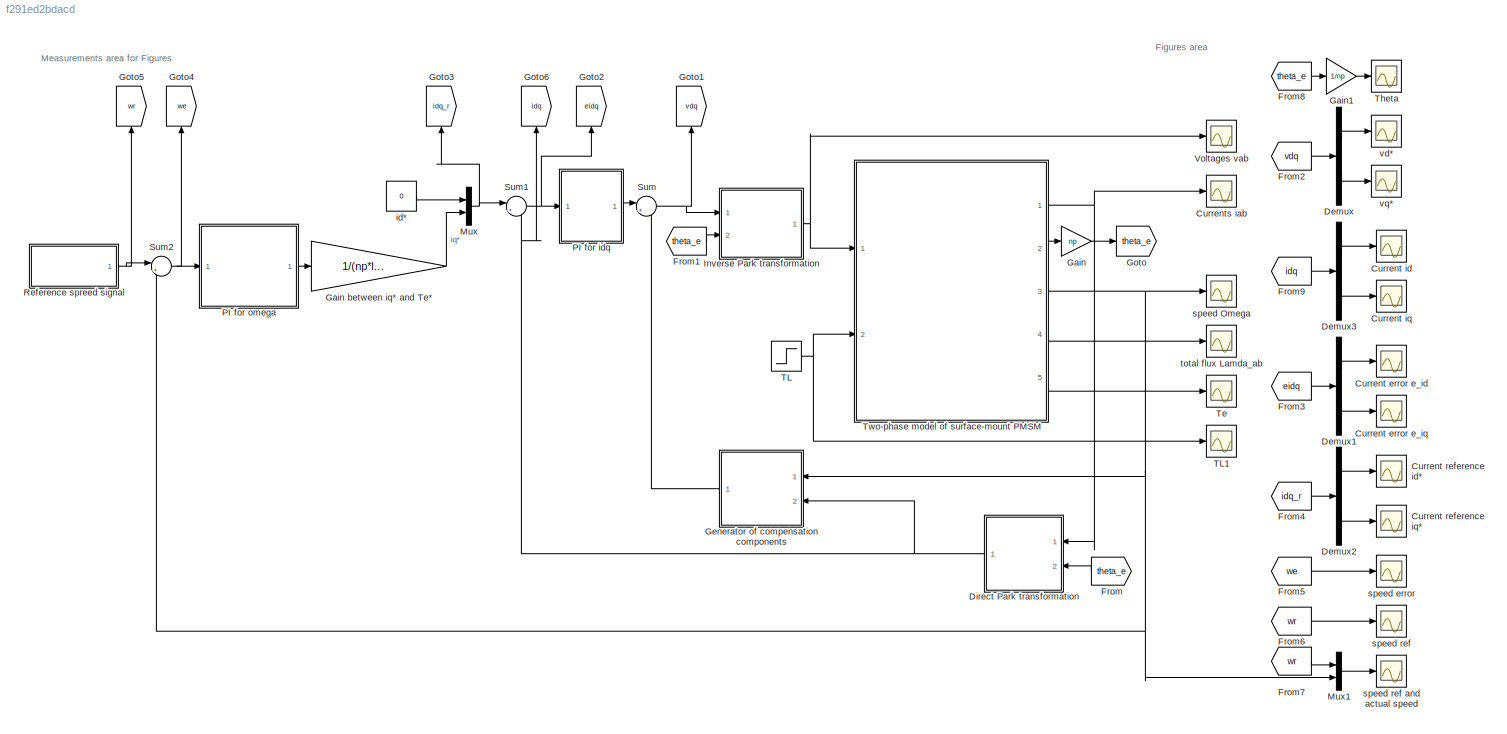
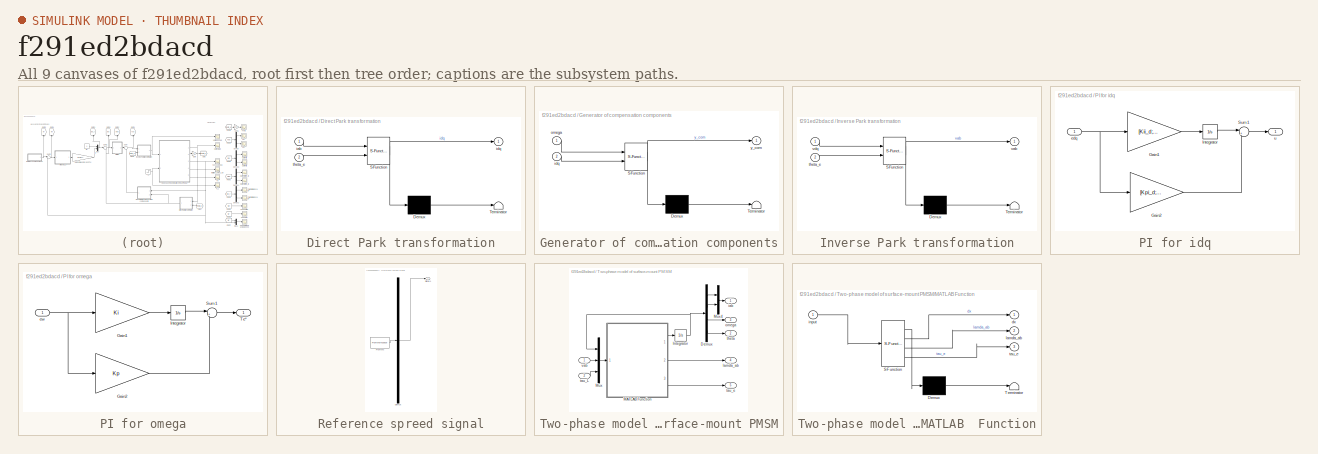
[diagram: thumbnail index - all 9 canvases of the model, root first then tree order]
MODEL slx_f291ed2bdacd
KIND model
CONFIG AbsTol = 1e-9
CONFIG EnableMultiTasking = off
CONFIG FixedStep = auto
CONFIG MaxStep = 0.0001
CONFIG MinStep = auto
CONFIG RelTol = 1e-9
CONFIG SampleTimeConstraint = Unconstrained
CONFIG SolverName = ode45
CONFIG StartTime = 0.0
CONFIG StopTime = 1
BLOCK [Scope] Current  id
  Floating = off
  NumInputPorts = 1
  Ports = [1]
  ScopeSpecificationString = Simulink.scopes.TimeScopeBlockCfg('CurrentConfiguration', extmgr.ConfigurationSet(extmgr.Configuration('Core','General UI',true),extmgr.Configuration('Core','Source UI',true),extmgr.Configuration('Sources','WiredSimulink',true,'DataLoggingVariableName','id','DataLogging',true,'DataLoggingSaveFormat','Array'),extmgr.Configuration('Visuals','Time Domain',true,'SerializedDisplays',{struct('MinYLimRea...<+1810ch>
BLOCK [Scope] Current error e_id
  Floating = off
  NumInputPorts = 1
  Ports = [1]
  ScopeSpecificationString = Simulink.scopes.TimeScopeBlockCfg('CurrentConfiguration', extmgr.ConfigurationSet(extmgr.Configuration('Core','General UI',true),extmgr.Configuration('Core','Source UI',true),extmgr.Configuration('Sources','WiredSimulink',true,'DataLoggingVariableName','e_id','DataLogging',true,'DataLoggingSaveFormat','Array'),extmgr.Configuration('Visuals','Time Domain',true,'SerializedDisplays',{struct('MinYLimR...<+1812ch>
BLOCK [Scope] Current error e_iq
  Floating = off
  NumInputPorts = 1
  Ports = [1]
  ScopeSpecificationString = Simulink.scopes.TimeScopeBlockCfg('CurrentConfiguration', extmgr.ConfigurationSet(extmgr.Configuration('Core','General UI',true),extmgr.Configuration('Core','Source UI',true),extmgr.Configuration('Sources','WiredSimulink',true,'DataLoggingVariableName','e_iq','DataLogging',true,'DataLoggingSaveFormat','Array'),extmgr.Configuration('Visuals','Time Domain',true,'SerializedDisplays',{struct('MinYLimR...<+1788ch>
BLOCK [Scope] Current iq
  Floating = off
  NumInputPorts = 1
  Ports = [1]
  ScopeSpecificationString = Simulink.scopes.TimeScopeBlockCfg('CurrentConfiguration', extmgr.ConfigurationSet(extmgr.Configuration('Core','General UI',true),extmgr.Configuration('Core','Source UI',true),extmgr.Configuration('Sources','WiredSimulink',true,'DataLoggingVariableName','iq','DataLogging',true,'DataLoggingSaveFormat','Array'),extmgr.Configuration('Visuals','Time Domain',true,'SerializedDisplays',{struct('MinYLimRea...<+1786ch>
BLOCK [Scope] Current reference id*
  Floating = off
  NumInputPorts = 1
  Ports = [1]
  ScopeSpecificationString = Simulink.scopes.TimeScopeBlockCfg('CurrentConfiguration', extmgr.ConfigurationSet(extmgr.Configuration('Core','General UI',true),extmgr.Configuration('Core','Source UI',true),extmgr.Configuration('Sources','WiredSimulink',true,'DataLoggingVariableName','id_r','DataLogging',true,'DataLoggingSaveFormat','Array'),extmgr.Configuration('Visuals','Time Domain',true,'SerializedDisplays',{struct('MinYLimR...<+1823ch>
BLOCK [Scope] Current reference iq*
  Floating = off
  NumInputPorts = 1
  Ports = [1]
  ScopeSpecificationString = Simulink.scopes.TimeScopeBlockCfg('CurrentConfiguration', extmgr.ConfigurationSet(extmgr.Configuration('Core','General UI',true),extmgr.Configuration('Core','Source UI',true),extmgr.Configuration('Sources','WiredSimulink',true,'DataLoggingVariableName','iq_r','DataLogging',true,'DataLoggingSaveFormat','Array'),extmgr.Configuration('Visuals','Time Domain',true,'SerializedDisplays',{struct('MinYLimR...<+1823ch>
BLOCK [Scope] Currents iab
  Floating = off
  NumInputPorts = 1
  Ports = [1]
  ScopeSpecificationString = Simulink.scopes.TimeScopeBlockCfg('CurrentConfiguration', extmgr.ConfigurationSet(extmgr.Configuration('Core','General UI',true),extmgr.Configuration('Core','Source UI',true),extmgr.Configuration('Sources','WiredSimulink',true,'DataLoggingVariableName','iab','DataLogging',true,'DataLoggingSaveFormat','Array'),extmgr.Configuration('Visuals','Time Domain',true,'SerializedDisplays',{struct('MinYLimRe...<+1562ch>
BLOCK [Demux] Demux
  Outputs = 2
  Ports = [1, 2]
BLOCK [Demux] Demux1
  Outputs = 2
  Ports = [1, 2]
BLOCK [Demux] Demux2
  Outputs = 2
  Ports = [1, 2]
BLOCK [Demux] Demux3
  Outputs = 2
  Ports = [1, 2]
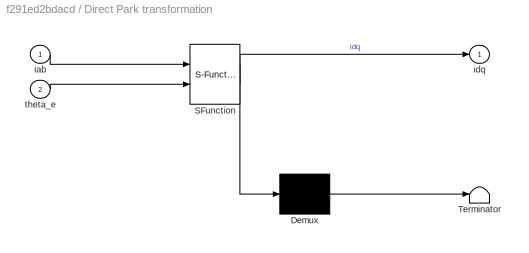
BLOCK [SubSystem] Direct Park transformation
  ErrorFcn = Stateflow.Translate.translate
  PermitHierarchicalResolution = ExplicitOnly
  Ports = [2, 1]
  RequestExecContextInheritance = off
  SFBlockType = MATLAB Function
  TreatAsAtomicUnit = on
BLOCK [Demux] Direct Park transformation/ Demux 
  Outputs = 1
  Ports = [1, 1]
BLOCK [S-Function] Direct Park transformation/ SFunction 
  EnableBusSupport = on
  FunctionName = sf_sfun
  PortCounts = [2 2]
  Ports = [2, 2]
  SFcnIsStateOwnerBlock = off
  SFunctionDeploymentMode = off
  Tag = Stateflow S-Function 1
BLOCK [Terminator] Direct Park transformation/ Terminator 
BLOCK [Inport] Direct Park transformation/iab
BLOCK [Outport] Direct Park transformation/idq
BLOCK [Inport] Direct Park transformation/theta_e
  Port = 2
BLOCK [From] From
  GotoTag = theta_e
BLOCK [From] From1
  GotoTag = theta_e
BLOCK [From] From2
  GotoTag = vdq
BLOCK [From] From3
  GotoTag = eidq
BLOCK [From] From4
  GotoTag = idq_r
BLOCK [From] From5
  GotoTag = we
BLOCK [From] From6
  GotoTag = wr
BLOCK [From] From7
  GotoTag = wr
BLOCK [From] From8
  GotoTag = theta_e
BLOCK [From] From9
  GotoTag = idq
BLOCK [Gain] Gain
  Gain = np
BLOCK [Gain] Gain between iq* and Te*
  Gain = 1/(np*lamda_m)
BLOCK [Gain] Gain1
  Gain = 1/np
BLOCK [SubSystem] Generator of compensation components
  ErrorFcn = Stateflow.Translate.translate
  PermitHierarchicalResolution = ExplicitOnly
  Ports = [2, 1]
  RequestExecContextInheritance = off
  SFBlockType = MATLAB Function
  TreatAsAtomicUnit = on
BLOCK [Demux] Generator of compensation components/ Demux 
  Outputs = 1
  Ports = [1, 1]
BLOCK [S-Function] Generator of compensation components/ SFunction 
  EnableBusSupport = on
  FunctionName = sf_sfun
  Parameters = L,lamda_m,np
  PortCounts = [2 2]
  Ports = [2, 2]
  SFcnIsStateOwnerBlock = off
  SFunctionDeploymentMode = off
  Tag = Stateflow S-Function 4
BLOCK [Terminator] Generator of compensation components/ Terminator 
BLOCK [Inport] Generator of compensation components/idq
  Port = 2
BLOCK [Inport] Generator of compensation components/omega
BLOCK [Outport] Generator of compensation components/y_com
BLOCK [Goto] Goto
  GotoTag = theta_e
BLOCK [Goto] Goto1
  GotoTag = vdq
  NameLocation = right
BLOCK [Goto] Goto2
  GotoTag = eidq
  NameLocation = right
BLOCK [Goto] Goto3
  GotoTag = idq_r
  NameLocation = right
BLOCK [Goto] Goto4
  GotoTag = we
  NameLocation = right
BLOCK [Goto] Goto5
  GotoTag = wr
  NameLocation = right
BLOCK [Goto] Goto6
  GotoTag = idq
  NameLocation = right
BLOCK [SubSystem] Inverse Park transformation
  ErrorFcn = Stateflow.Translate.translate
  PermitHierarchicalResolution = ExplicitOnly
  Ports = [2, 1]
  RequestExecContextInheritance = off
  SFBlockType = MATLAB Function
  TreatAsAtomicUnit = on
BLOCK [Demux] Inverse Park transformation/ Demux 
  Outputs = 1
  Ports = [1, 1]
BLOCK [S-Function] Inverse Park transformation/ SFunction 
  EnableBusSupport = on
  FunctionName = sf_sfun
  PortCounts = [2 2]
  Ports = [2, 2]
  SFcnIsStateOwnerBlock = off
  SFunctionDeploymentMode = off
  Tag = Stateflow S-Function 3
BLOCK [Terminator] Inverse Park transformation/ Terminator 
BLOCK [Inport] Inverse Park transformation/theta_e
  Port = 2
BLOCK [Outport] Inverse Park transformation/vab
BLOCK [Inport] Inverse Park transformation/vdq
BLOCK [Mux] Mux
  DisplayOption = bar
  Inputs = 2
  Ports = [2, 1]
BLOCK [Mux] Mux1
  DisplayOption = bar
  Inputs = 2
  Ports = [2, 1]
BLOCK [SubSystem] PI for idq
  Ports = [1, 1]
  RequestExecContextInheritance = off
BLOCK [Gain] PI for idq/Gain1
  Gain = [Kii_d;Kii_q]
BLOCK [Gain] PI for idq/Gain2
  Gain = [Kpi_d;Kpi_q]
BLOCK [Integrator] PI for idq/Integrator
  Ports = [1, 1]
BLOCK [Sum] PI for idq/Sum1
  Inputs = |++
  Ports = [2, 1]
BLOCK [Inport] PI for idq/edq
BLOCK [Outport] PI for idq/u
BLOCK [SubSystem] PI for omega
  Ports = [1, 1]
  RequestExecContextInheritance = off
BLOCK [Gain] PI for omega/Gain1
  Gain = Ki
BLOCK [Gain] PI for omega/Gain2
  Gain = Kp
BLOCK [Integrator] PI for omega/Integrator
  Ports = [1, 1]
BLOCK [Sum] PI for omega/Sum1
  Inputs = |++
  Ports = [2, 1]
BLOCK [Outport] PI for omega/Te*
BLOCK [Inport] PI for omega/ew
BLOCK [SubSystem] Reference spreed signal
  ClipboardFcn = sigbuilder_block('clipboard');
  CloseFcn = sigbuilder_block('close');
  ContinueFcn = sigbuilder_block('continue');
  CopyFcn = sigbuilder_block('copy');
  DeleteFcn = sigbuilder_block('delete');
  LoadFcn = sigbuilder_block('load');
  MaskHideContents = on
  ModelCloseFcn = sigbuilder_block('modelClose');
  NameChangeFcn = sigbuilder_block('namechange');
  OpenFcn = sigbuilder_block('open',[1467 209.25 550.5 359.25 ]);
  PauseFcn = sigbuilder_block('pause');
  Ports = [0, 1]
  PreSaveFcn = sigbuilder_block('preSave');
  RequestExecContextInheritance = off
  StartFcn = sigbuilder_block('start');
  StopFcn = sigbuilder_block('stop');
  Tag = STV Subsys
BLOCK [Demux] Reference spreed signal/Demux
  DisplayOption = none
  Outputs = 1
  Ports = [1, 1]
  Tag = STV Demux
BLOCK [FromWorkspace] Reference spreed signal/FromWs
  Tag = STV FromWs
  VariableName = tuvar
BLOCK [Outport] Reference spreed signal/Signal 1
  Tag = STV Outport
BLOCK [Sum] Sum
  Inputs = |++
  Ports = [2, 1]
BLOCK [Sum] Sum1
  Inputs = |+-
  Ports = [2, 1]
BLOCK [Sum] Sum2
  Inputs = |+-
  Ports = [2, 1]
BLOCK [Step] TL
  After = TL1
  SampleTime = 0
  Time = 0.5
BLOCK [Scope] TL1
  Floating = off
  NumInputPorts = 1
  Ports = [1]
  ScopeSpecificationString = Simulink.scopes.TimeScopeBlockCfg('CurrentConfiguration', extmgr.ConfigurationSet(extmgr.Configuration('Core','General UI',true),extmgr.Configuration('Core','Source UI',true),extmgr.Configuration('Sources','WiredSimulink',true,'DataLoggingVariableName','TL','DataLogging',true,'DataLoggingSaveFormat','Array'),extmgr.Configuration('Visuals','Time Domain',true,'SerializedDisplays',{struct('MinYLimRea...<+1434ch>
BLOCK [Scope] Te
  Floating = off
  NumInputPorts = 1
  Ports = [1]
  ScopeSpecificationString = Simulink.scopes.TimeScopeBlockCfg('CurrentConfiguration', extmgr.ConfigurationSet(extmgr.Configuration('Core','General UI',true),extmgr.Configuration('Core','Source UI',true),extmgr.Configuration('Sources','WiredSimulink',true,'DataLogging',true,'DataLoggingVariableName','Te','DataLoggingSaveFormat','Array'),extmgr.Configuration('Visuals','Time Domain',true,'SerializedDisplays',{struct('MinYLimRea...<+1475ch>
BLOCK [Scope] Theta
  Floating = off
  NumInputPorts = 1
  Ports = [1]
  ScopeSpecificationString = Simulink.scopes.TimeScopeBlockCfg('CurrentConfiguration', extmgr.ConfigurationSet(extmgr.Configuration('Core','General UI',true),extmgr.Configuration('Core','Source UI',true),extmgr.Configuration('Sources','WiredSimulink',true,'DataLoggingVariableName','theta','DataLogging',true,'DataLoggingSaveFormat','Array'),extmgr.Configuration('Visuals','Time Domain',true,'SerializedDisplays',{struct('MinYLim...<+1786ch>
BLOCK [SubSystem] Two-phase model of surface-mount PMSM
  Ports = [2, 5]
  RequestExecContextInheritance = off
BLOCK [Demux] Two-phase model of surface-mount PMSM/Demux
  Ports = [1, 4]
BLOCK [Integrator] Two-phase model of surface-mount PMSM/Integrator
  InitialCondition = [iab_0;omega_0;theta_0]
  Ports = [1, 1]
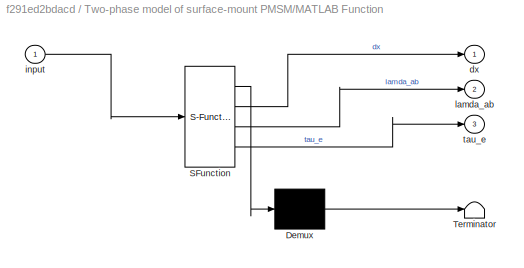
BLOCK [SubSystem] Two-phase model of surface-mount PMSM/MATLAB  Function
  ErrorFcn = Stateflow.Translate.translate
  PermitHierarchicalResolution = ExplicitOnly
  Ports = [1, 3]
  RequestExecContextInheritance = off
  SFBlockType = MATLAB Function
  TreatAsAtomicUnit = on
BLOCK [Demux] Two-phase model of surface-mount PMSM/MATLAB  Function/ Demux 
  Outputs = 1
  Ports = [1, 1]
BLOCK [S-Function] Two-phase model of surface-mount PMSM/MATLAB  Function/ SFunction 
  EnableBusSupport = on
  FunctionName = sf_sfun
  Parameters = B,Jm,L,R,lamda_m,np
  PortCounts = [1 4]
  Ports = [1, 4]
  SFcnIsStateOwnerBlock = off
  SFunctionDeploymentMode = off
  Tag = Stateflow S-Function 2
BLOCK [Terminator] Two-phase model of surface-mount PMSM/MATLAB  Function/ Terminator 
BLOCK [Outport] Two-phase model of surface-mount PMSM/MATLAB  Function/dx
  VectorParamsAs1DForOutWhenUnconnected = off
BLOCK [Inport] Two-phase model of surface-mount PMSM/MATLAB  Function/input
BLOCK [Outport] Two-phase model of surface-mount PMSM/MATLAB  Function/lamda_ab
  Port = 2
BLOCK [Outport] Two-phase model of surface-mount PMSM/MATLAB  Function/tau_e
  Port = 3
BLOCK [Mux] Two-phase model of surface-mount PMSM/Mux
  DisplayOption = bar
  Inputs = 3
  Ports = [3, 1]
BLOCK [Mux] Two-phase model of surface-mount PMSM/Mux4
  DisplayOption = bar
  Inputs = 2
  Ports = [2, 1]
BLOCK [Outport] Two-phase model of surface-mount PMSM/iab
BLOCK [Outport] Two-phase model of surface-mount PMSM/lamda_ab
  Port = 4
BLOCK [Outport] Two-phase model of surface-mount PMSM/omega
  Port = 3
BLOCK [Inport] Two-phase model of surface-mount PMSM/tau_L
  Port = 2
BLOCK [Outport] Two-phase model of surface-mount PMSM/tau_e
  Port = 5
BLOCK [Outport] Two-phase model of surface-mount PMSM/theta
  OutDataTypeStr = double
  Port = 2
  PortDimensions = 1
BLOCK [Inport] Two-phase model of surface-mount PMSM/vab
BLOCK [Scope] Voltages vab
  Floating = off
  NumInputPorts = 1
  Ports = [1]
  ScopeSpecificationString = Simulink.scopes.TimeScopeBlockCfg('CurrentConfiguration', extmgr.ConfigurationSet(extmgr.Configuration('Core','General UI',true),extmgr.Configuration('Core','Source UI',true),extmgr.Configuration('Sources','WiredSimulink',true,'DataLoggingVariableName','vab','DataLogging',true,'DataLoggingSaveFormat','Array'),extmgr.Configuration('Visuals','Time Domain',true,'SerializedDisplays',{struct('MinYLimRe...<+1887ch>
BLOCK [Constant] id*
  Value = 0
BLOCK [Scope] speed Omega
  Floating = off
  NumInputPorts = 1
  Ports = [1]
  ScopeSpecificationString = Simulink.scopes.TimeScopeBlockCfg('CurrentConfiguration', extmgr.ConfigurationSet(extmgr.Configuration('Core','General UI',true),extmgr.Configuration('Core','Source UI',true),extmgr.Configuration('Sources','WiredSimulink',true,'DataLoggingVariableName','Omega','DataLogging',true,'DataLoggingSaveFormat','Array'),extmgr.Configuration('Visuals','Time Domain',true,'SerializedDisplays',{struct('MinYLim...<+1830ch>
BLOCK [Scope] speed error
  Floating = off
  NumInputPorts = 1
  Ports = [1]
  ScopeSpecificationString = Simulink.scopes.TimeScopeBlockCfg('CurrentConfiguration', extmgr.ConfigurationSet(extmgr.Configuration('Core','General UI',true),extmgr.Configuration('Core','Source UI',true),extmgr.Configuration('Sources','WiredSimulink',true,'DataLoggingVariableName','we','DataLogging',true,'DataLoggingSaveFormat','Array'),extmgr.Configuration('Visuals','Time Domain',true,'SerializedDisplays',{struct('MinYLimRea...<+1782ch>
BLOCK [Scope] speed ref
  Floating = off
  NumInputPorts = 1
  Ports = [1]
  ScopeSpecificationString = Simulink.scopes.TimeScopeBlockCfg('CurrentConfiguration', extmgr.ConfigurationSet(extmgr.Configuration('Core','General UI',true),extmgr.Configuration('Core','Source UI',true),extmgr.Configuration('Sources','WiredSimulink',true,'DataLoggingVariableName','wr','DataLogging',true,'DataLoggingSaveFormat','Array'),extmgr.Configuration('Visuals','Time Domain',true,'SerializedDisplays',{struct('MinYLimRea...<+1793ch>
BLOCK [Scope] speed ref and actual speed
  Floating = off
  NumInputPorts = 1
  Ports = [1]
  ScopeSpecificationString = Simulink.scopes.TimeScopeBlockCfg('CurrentConfiguration', extmgr.ConfigurationSet(extmgr.Configuration('Core','General UI',true),extmgr.Configuration('Core','Source UI',true),extmgr.Configuration('Sources','WiredSimulink',true,'DataLoggingVariableName','wre','DataLogging',true,'DataLoggingSaveFormat','Array'),extmgr.Configuration('Visuals','Time Domain',true,'SerializedDisplays',{struct('MinYLimRe...<+1873ch>
BLOCK [Scope] total flux Lamda_ab
  Floating = off
  NumInputPorts = 1
  Ports = [1]
  ScopeSpecificationString = Simulink.scopes.TimeScopeBlockCfg('CurrentConfiguration', extmgr.ConfigurationSet(extmgr.Configuration('Core','General UI',true),extmgr.Configuration('Core','Source UI',true),extmgr.Configuration('Sources','WiredSimulink',true,'DataLoggingVariableName','Lamda_ab','DataLogging',true,'DataLoggingSaveFormat','Array'),extmgr.Configuration('Visuals','Time Domain',true,'SerializedDisplays',{struct('MinY...<+1943ch>
BLOCK [Scope] vd*
  Floating = off
  NumInputPorts = 1
  Ports = [1]
  ScopeSpecificationString = Simulink.scopes.TimeScopeBlockCfg('CurrentConfiguration', extmgr.ConfigurationSet(extmgr.Configuration('Core','General UI',true),extmgr.Configuration('Core','Source UI',true),extmgr.Configuration('Sources','WiredSimulink',true,'DataLoggingVariableName','vd_r','DataLogging',true,'DataLoggingSaveFormat','Array'),extmgr.Configuration('Visuals','Time Domain',true,'SerializedDisplays',{struct('MinYLimR...<+1787ch>
BLOCK [Scope] vq*
  Floating = off
  NumInputPorts = 1
  Ports = [1]
  ScopeSpecificationString = Simulink.scopes.TimeScopeBlockCfg('CurrentConfiguration', extmgr.ConfigurationSet(extmgr.Configuration('Core','General UI',true),extmgr.Configuration('Core','Source UI',true),extmgr.Configuration('Sources','WiredSimulink',true,'DataLoggingVariableName','vq_r','DataLogging',true,'DataLoggingSaveFormat','Array'),extmgr.Configuration('Visuals','Time Domain',true,'SerializedDisplays',{struct('MinYLimR...<+1797ch>
ANNOTATION (root): Figures area
ANNOTATION (root): Measurements area for Figures
LINE Demux1:1 -> Current error e_id:1
LINE Demux1:2 -> Current error e_iq:1
LINE Demux2:1 -> Current reference id*:1
LINE Demux2:2 -> Current reference iq*:1
LINE Demux3:1 -> Current  id:1
LINE Demux3:2 -> Current iq:1
LINE Demux:1 -> vd*:1
LINE Demux:2 -> vq*:1
NET Direct Park transformation:1 -> Generator of compensation components:2, Goto6:1, Sum1:2
LINE From1:1 -> Inverse Park transformation:2
LINE From2:1 -> Demux:1
LINE From3:1 -> Demux1:1
LINE From4:1 -> Demux2:1
LINE From5:1 -> speed error:1
LINE From6:1 -> speed ref:1
LINE From7:1 -> Mux1:1
LINE From8:1 -> Gain1:1
LINE From9:1 -> Demux3:1
LINE From:1 -> Direct Park transformation:2
LINE Gain between iq* and Te*:1 -> Mux:2
LINE Gain1:1 -> Theta:1
LINE Gain:1 -> Goto:1
LINE Generator of compensation components:1 -> Sum:2
NET Inverse Park transformation:1 -> Two-phase model of surface-mount PMSM:1, Voltages vab:1
LINE Mux1:1 -> speed ref and actual speed:1
NET Mux:1 -> Goto3:1, Sum1:1
LINE PI for idq/Gain1:1 -> PI for idq/Integrator:1
LINE PI for idq/Gain2:1 -> PI for idq/Sum1:2
LINE PI for idq/Integrator:1 -> PI for idq/Sum1:1
LINE PI for idq/Sum1:1 -> PI for idq/u:1
NET PI for idq/edq:1 -> PI for idq/Gain1:1, PI for idq/Gain2:1
LINE PI for idq:1 -> Sum:1
LINE PI for omega/Gain1:1 -> PI for omega/Integrator:1
LINE PI for omega/Gain2:1 -> PI for omega/Sum1:2
LINE PI for omega/Integrator:1 -> PI for omega/Sum1:1
LINE PI for omega/Sum1:1 -> PI for omega/Te*:1
NET PI for omega/ew:1 -> PI for omega/Gain1:1, PI for omega/Gain2:1
LINE PI for omega:1 -> Gain between iq* and Te*:1
NET Reference spreed signal:1 -> Goto5:1, Sum2:1
NET Sum1:1 -> Goto2:1, PI for idq:1
NET Sum2:1 -> Goto4:1, PI for omega:1
NET Sum:1 -> Goto1:1, Inverse Park transformation:1
NET TL:1 -> TL1:1, Two-phase model of surface-mount PMSM:2
LINE Two-phase model of surface-mount PMSM/Demux:1 -> Two-phase model of surface-mount PMSM/Mux4:1
LINE Two-phase model of surface-mount PMSM/Demux:2 -> Two-phase model of surface-mount PMSM/Mux4:2
LINE Two-phase model of surface-mount PMSM/Demux:3 -> Two-phase model of surface-mount PMSM/omega:1
LINE Two-phase model of surface-mount PMSM/Demux:4 -> Two-phase model of surface-mount PMSM/theta:1
NET Two-phase model of surface-mount PMSM/Integrator:1 -> Two-phase model of surface-mount PMSM/Demux:1, Two-phase model of surface-mount PMSM/Mux:1
LINE Two-phase model of surface-mount PMSM/MATLAB  Function:1 -> Two-phase model of surface-mount PMSM/Integrator:1
LINE Two-phase model of surface-mount PMSM/MATLAB  Function:2 -> Two-phase model of surface-mount PMSM/lamda_ab:1
LINE Two-phase model of surface-mount PMSM/MATLAB  Function:3 -> Two-phase model of surface-mount PMSM/tau_e:1
LINE Two-phase model of surface-mount PMSM/Mux4:1 -> Two-phase model of surface-mount PMSM/iab:1
LINE Two-phase model of surface-mount PMSM/Mux:1 -> Two-phase model of surface-mount PMSM/MATLAB  Function:1
LINE Two-phase model of surface-mount PMSM/tau_L:1 -> Two-phase model of surface-mount PMSM/Mux:3
LINE Two-phase model of surface-mount PMSM/vab:1 -> Two-phase model of surface-mount PMSM/Mux:2
NET Two-phase model of surface-mount PMSM:1 -> Currents iab:1, Direct Park transformation:1
LINE Two-phase model of surface-mount PMSM:2 -> Gain:1
NET Two-phase model of surface-mount PMSM:3 -> Generator of compensation components:1, Mux1:2, Sum2:2, speed Omega:1
LINE Two-phase model of surface-mount PMSM:4 -> total flux Lamda_ab:1
LINE Two-phase model of surface-mount PMSM:5 -> Te:1
LINE id*:1 -> Mux:1
note: NET lines group one-source signal fan-out (src -> all destinations, sorted); 1:1 wires keep LINE
CHART Direct Park transformation states=1 transitions=1
  STATE_LABEL 'eML_blk_kernel()'
  STATE_LABEL 'SCRIPT:\nfunction idq = fcn(iab,theta_e)\nidq = cos(theta_e+[0 -pi/2;pi/2 0])*iab;\nend\n'
CHART Two-phase model of surface-mount PMSM/MATLAB  Function states=1 transitions=1
  STATE_LABEL 'eML_blk_kernel()'
  STATE_LABEL "SCRIPT:\nfunction [dx,lamda_ab,tau_e]  = fcn(input,R, L, lamda_m, np, Jm, B)\nia=input(1);\nib=input(2);\niab=[ia;ib];\nomega=input(3);\ntheta=input(4);\nva=input(5);\nvb=input(6);\nvab=[va;vb];\ntau_L=input(7);\n\n%%%%%%%\nC=[cos(np*theta);sin(np*theta)];\nJ=[0 -1;1 0];\ndC=np*J*C;\n%%%%%%%\ndot_iab=(1/L)*(-R*iab-omega*lamda_m*dC+vab);\ndot_omega=(1/Jm)*(-B*omega+lamda_m*iab'*dC-tau_L);\ndot_theta=omega;\nlamda_ab=L...<+89ch>"
CHART Inverse Park transformation states=1 transitions=1
  STATE_LABEL 'eML_blk_kernel()'
  STATE_LABEL 'SCRIPT:\nfunction vab = fcn(vdq,theta_e)\nvab = cos(theta_e+[0 pi/2;-pi/2 0])*vdq;\nend\n'
CHART Generator of compensation components states=1 transitions=1
  STATE_LABEL 'eML_blk_kernel()'
  STATE_LABEL 'SCRIPT:\nfunction y_com = fcn(omega,idq,np, L, lamda_m)\ny_com=np*omega*[-L*idq(2);(L*idq(1)+lamda_m)];\nend\n'
CHART  states=0 transitions=0
CHART  states=0 transitions=0
CHART  states=0 transitions=0
CHART  states=0 transitions=0
